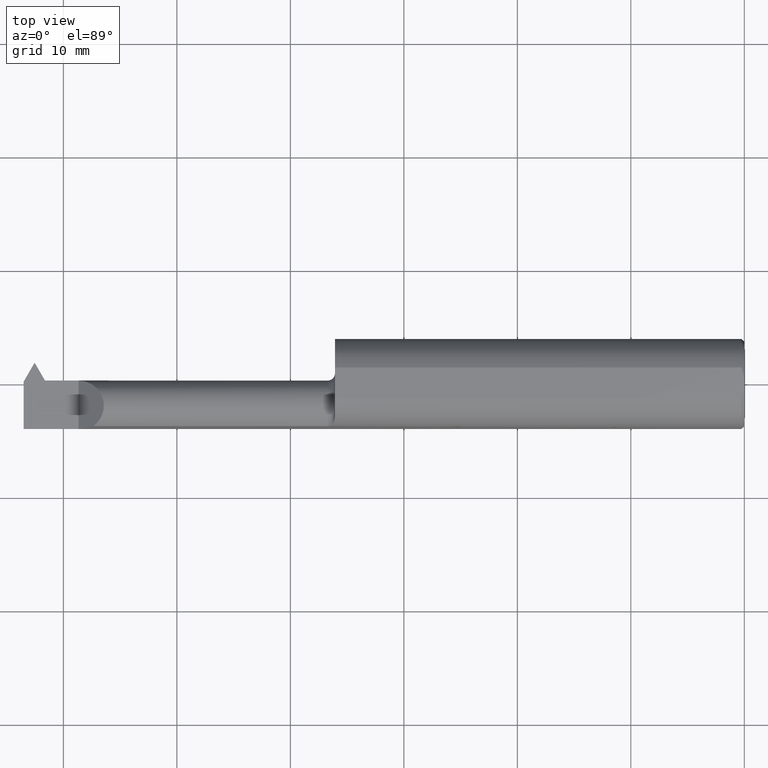
[diagram: clean part render]
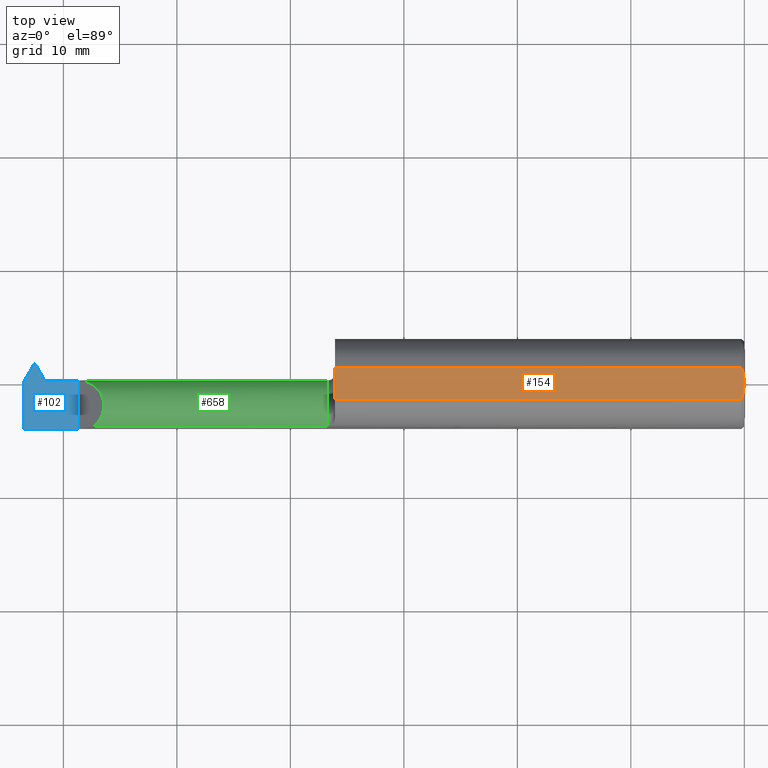
[diagram: same view with three faces highlighted in distinct colors, each labeled with its STEP entity id]
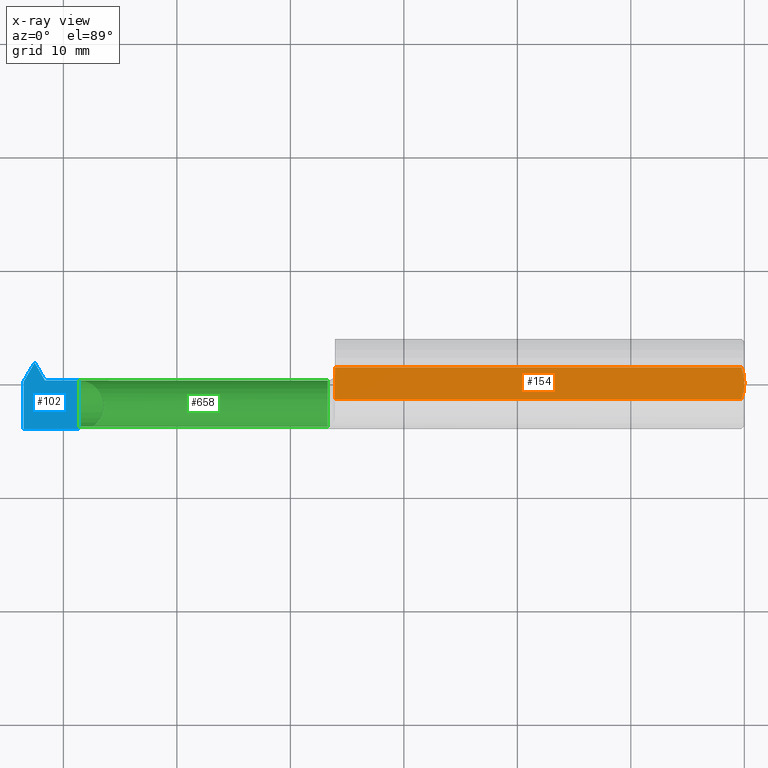
[diagram: x-ray of the same camera — body ghosted, the three highlighted faces saturated]
A machine part, top view with three faces highlighted in distinct colors.
The next image is the same camera in x-ray (body ghosted, the three faces saturated) — at least one of them is partly hidden behind the body in this view.
Their STEP definitions:

[orange] entity #154 — the highlighted planar face has unit normal (-0, 0, -1).
#4 = VECTOR ( 'NONE', #535, 39.37007874015748143 ) ;
#34 = VERTEX_POINT ( 'NONE', #108 ) ;
#37 = EDGE_CURVE ( 'NONE', #34, #790, #402, .T. ) ;
#67 = LINE ( 'NONE', #141, #210 ) ;
#108 = CARTESIAN_POINT ( 'NONE',  ( -3.241309669837331952E-33, 2.086455426436077518E-16, 0.1461000000000000354 ) ) ;
#113 = CARTESIAN_POINT ( 'NONE',  ( -0.004370115738486220897, 0.03710696786819750459, 0.1461000000000000076 ) ) ;
#126 = CARTESIAN_POINT ( 'NONE',  ( -2.500000000000000000, 0.1811000000000001220, 0.1461000000000000354 ) ) ;
#141 = CARTESIAN_POINT ( 'NONE',  ( -2.500000000000000000, 0.05497272050753895106, 0.1461000000000000076 ) ) ;
#143 = DIRECTION ( 'NONE',  ( -2.196953021474273815E-33, 1.414195192744475008E-16, -1.000000000000000000 ) ) ;
#154 = ADVANCED_FACE ( 'NONE', ( #191 ), #211, .F. ) ;
#183 = B_SPLINE_CURVE_WITH_KNOTS ( 'NONE', 3,
 ( #647, #223, #703, #516, #303, #766 ),
 .UNSPECIFIED., .F., .F.,
 ( 4, 2, 4 ),
 ( 0.001497827971916989567, 0.002206109860466244632, 0.002914391749015499914 ),
 .UNSPECIFIED. ) ;
#191 = FACE_OUTER_BOUND ( 'NONE', #484, .T. ) ;
#193 = EDGE_CURVE ( 'NONE', #688, #584, #538, .T. ) ;
#198 = CARTESIAN_POINT ( 'NONE',  ( 6.904318952737417485E-16, 0.009396510398413217627, 0.1461000000000000631 ) ) ;
#210 = VECTOR ( 'NONE', #417, 39.37007874015748143 ) ;
#211 = PLANE ( 'NONE',  #525 ) ;
#223 = CARTESIAN_POINT ( 'NONE',  ( -0.006903212852520313608, -0.04617911398309882537, 0.1461000000000000354 ) ) ;
#224 = VERTEX_POINT ( 'NONE', #824 ) ;
#257 = VECTOR ( 'NONE', #866, 39.37007874015748143 ) ;
#269 = LINE ( 'NONE', #470, #4 ) ;
#291 = EDGE_CURVE ( 'NONE', #790, #584, #67, .T. ) ;
#302 = ORIENTED_EDGE ( 'NONE', *, *, #291, .T. ) ;
#303 = CARTESIAN_POINT ( 'NONE',  ( 6.814946972475936967E-16, -0.009387766318748616556, 0.1461000000000000354 ) ) ;
#308 = ORIENTED_EDGE ( 'NONE', *, *, #37, .T. ) ;
#333 = DIRECTION ( 'NONE',  ( 0.000000000000000000, 1.000000000000000000, 1.414195192744475008E-16 ) ) ;
#340 = CARTESIAN_POINT ( 'NONE',  ( -3.241309669837331952E-33, 2.086455426436077518E-16, 0.1461000000000000354 ) ) ;
#347 = CARTESIAN_POINT ( 'NONE',  ( -1.420000000000000151, 0.05497272050753924943, 0.1461000000000000354 ) ) ;
#361 = ORIENTED_EDGE ( 'NONE', *, *, #193, .F. ) ;
#391 = CARTESIAN_POINT ( 'NONE',  ( -0.0009290501461033225323, 0.01879395969143610179, 0.1461000000000000631 ) ) ;
#402 = B_SPLINE_CURVE_WITH_KNOTS ( 'NONE', 3,
 ( #340, #198, #391, #113, #654, #582 ),
 .UNSPECIFIED., .F., .F.,
 ( 4, 2, 4 ),
 ( 0.002914391749015499914, 0.003623333355014890598, 0.004332274961014280848 ),
 .UNSPECIFIED. ) ;
#417 = DIRECTION ( 'NONE',  ( -1.000000000000000000, -1.224646799147352961E-16, 0.000000000000000000 ) ) ;
#437 = EDGE_CURVE ( 'NONE', #224, #34, #183, .T. ) ;
#470 = CARTESIAN_POINT ( 'NONE',  ( -2.500000000000000000, -0.05497272050753911760, 0.1461000000000000076 ) ) ;
#484 = EDGE_LOOP ( 'NONE', ( #361, #560, #576, #308, #302 ) ) ;
#516 = CARTESIAN_POINT ( 'NONE',  ( -0.0009113193687663462966, -0.01867274705588926886, 0.1460999999999999799 ) ) ;
#525 = AXIS2_PLACEMENT_3D ( 'NONE', #126, #143, #333 ) ;
#533 = CARTESIAN_POINT ( 'NONE',  ( -1.420000000000000151, 0.1811000000000001220, 0.1461000000000000354 ) ) ;
#535 = DIRECTION ( 'NONE',  ( 1.000000000000000000, 1.224646799147352961E-16, -0.000000000000000000 ) ) ;
#538 = LINE ( 'NONE', #533, #257 ) ;
#560 = ORIENTED_EDGE ( 'NONE', *, *, #609, .T. ) ;
#576 = ORIENTED_EDGE ( 'NONE', *, *, #437, .T. ) ;
#582 = CARTESIAN_POINT ( 'NONE',  ( -0.009999999999999073866, 0.05497272050753925637, 0.1461000000000000076 ) ) ;
#584 = VERTEX_POINT ( 'NONE', #347 ) ;
#609 = EDGE_CURVE ( 'NONE', #688, #224, #269, .T. ) ;
#647 = CARTESIAN_POINT ( 'NONE',  ( -0.009999999999999073866, -0.05497272050753881228, 0.1461000000000000076 ) ) ;
#654 = CARTESIAN_POINT ( 'NONE',  ( -0.006876379561361965764, 0.04610291843171875070, 0.1461000000000000354 ) ) ;
#670 = CARTESIAN_POINT ( 'NONE',  ( -0.009999999999999073866, 0.05497272050753925637, 0.1461000000000000076 ) ) ;
#688 = VERTEX_POINT ( 'NONE', #732 ) ;
#703 = CARTESIAN_POINT ( 'NONE',  ( -0.004356241145161064872, -0.03705973501792333979, 0.1461000000000000354 ) ) ;
#732 = CARTESIAN_POINT ( 'NONE',  ( -1.420000000000000151, -0.05497272050753899270, 0.1461000000000000076 ) ) ;
#766 = CARTESIAN_POINT ( 'NONE',  ( -3.241309669837331952E-33, 2.086455426436077518E-16, 0.1461000000000000354 ) ) ;
#790 = VERTEX_POINT ( 'NONE', #670 ) ;
#824 = CARTESIAN_POINT ( 'NONE',  ( -0.009999999999999073866, -0.05497272050753881228, 0.1461000000000000076 ) ) ;
#866 = DIRECTION ( 'NONE',  ( -1.301231752219315598E-17, 1.000000000000000000, 1.414195192744475008E-16 ) ) ;

[blue] entity #102 — the highlighted planar face has unit normal (-0, 0, -1).
#5 = CARTESIAN_POINT ( 'NONE',  ( -2.500000000000000000, 0.01189999999999992973, 8.875653457662611807E-19 ) ) ;
#7 = ORIENTED_EDGE ( 'NONE', *, *, #476, .F. ) ;
#10 = VERTEX_POINT ( 'NONE', #260 ) ;
#13 = VERTEX_POINT ( 'NONE', #119 ) ;
#17 = ORIENTED_EDGE ( 'NONE', *, *, #275, .T. ) ;
#20 = DIRECTION ( 'NONE',  ( 0.5000000000000074385, -0.8660254037844342667, 0.000000000000000000 ) ) ;
#30 = ORIENTED_EDGE ( 'NONE', *, *, #86, .F. ) ;
#32 = VERTEX_POINT ( 'NONE', #471 ) ;
#41 = CARTESIAN_POINT ( 'NONE',  ( -2.500000000000000000, -0.1561000000000000720, 8.875653457662611807E-19 ) ) ;
#45 = VECTOR ( 'NONE', #284, 39.37007874015748143 ) ;
#60 = CARTESIAN_POINT ( 'NONE',  ( -2.500000000000000000, 0.07189999999999992231, 8.875653457662611807E-19 ) ) ;
#66 = AXIS2_PLACEMENT_3D ( 'NONE', #610, #856, #278 ) ;
#68 = CARTESIAN_POINT ( 'NONE',  ( -2.460750000000000437, 0.07189999999999995006, 0.000000000000000000 ) ) ;
#73 = ORIENTED_EDGE ( 'NONE', *, *, #624, .F. ) ;
#86 = EDGE_CURVE ( 'NONE', #32, #622, #675, .T. ) ;
#102 = ADVANCED_FACE ( 'NONE', ( #542 ), #544, .F. ) ;
#106 = CARTESIAN_POINT ( 'NONE',  ( -2.310000000000000053, -0.2500000000000000000, 0.000000000000000000 ) ) ;
#119 = CARTESIAN_POINT ( 'NONE',  ( -2.310000000000000053, 0.01189999999999987769, 0.000000000000000000 ) ) ;
#124 = EDGE_LOOP ( 'NONE', ( #30, #73, #17, #418, #144, #404, #7, #706 ) ) ;
#144 = ORIENTED_EDGE ( 'NONE', *, *, #422, .T. ) ;
#165 = DIRECTION ( 'NONE',  ( 1.000000000000000000, 2.091571120149166951E-14, 0.000000000000000000 ) ) ;
#239 = LINE ( 'NONE', #106, #850 ) ;
#256 = VERTEX_POINT ( 'NONE', #277 ) ;
#260 = CARTESIAN_POINT ( 'NONE',  ( -2.310000000000000053, -0.1561000000000000998, 0.000000000000000000 ) ) ;
#273 = DIRECTION ( 'NONE',  ( 1.000000000000000000, 1.301231752219315598E-17, 0.000000000000000000 ) ) ;
#275 = EDGE_CURVE ( 'NONE', #770, #694, #809, .T. ) ;
#277 = CARTESIAN_POINT ( 'NONE',  ( -2.426108983848622280, 0.01189999999999981004, 0.000000000000000000 ) ) ;
#278 = DIRECTION ( 'NONE',  ( -1.000000000000000000, 0.000000000000000000, 4.671396556664535003E-18 ) ) ;
#284 = DIRECTION ( 'NONE',  ( 1.000000000000000000, 1.301231752219315598E-17, 0.000000000000000000 ) ) ;
#357 = VECTOR ( 'NONE', #20, 39.37007874015748854 ) ;
#363 = EDGE_CURVE ( 'NONE', #565, #13, #614, .T. ) ;
#404 = ORIENTED_EDGE ( 'NONE', *, *, #363, .F. ) ;
#408 = CARTESIAN_POINT ( 'NONE',  ( -2.421108983848621943, 0.01189999999999981004, 0.000000000000000000 ) ) ;
#418 = ORIENTED_EDGE ( 'NONE', *, *, #807, .T. ) ;
#422 = EDGE_CURVE ( 'NONE', #10, #13, #239, .T. ) ;
#443 = VECTOR ( 'NONE', #743, 39.37007874015748143 ) ;
#461 = LINE ( 'NONE', #657, #357 ) ;
#471 = CARTESIAN_POINT ( 'NONE',  ( -2.463250000000000384, 0.07189999999999988067, 0.000000000000000000 ) ) ;
#476 = EDGE_CURVE ( 'NONE', #256, #565, #571, .T. ) ;
#539 = DIRECTION ( 'NONE',  ( 1.000000000000000000, 1.224646799147352961E-16, -0.000000000000000000 ) ) ;
#542 = FACE_OUTER_BOUND ( 'NONE', #124, .T. ) ;
#544 = PLANE ( 'NONE',  #66 ) ;
#554 = DIRECTION ( 'NONE',  ( 1.224646799147352961E-16, -1.000000000000000000, -5.720810840667189241E-34 ) ) ;
#565 = VERTEX_POINT ( 'NONE', #408 ) ;
#571 = LINE ( 'NONE', #627, #812 ) ;
#588 = VECTOR ( 'NONE', #554, 39.37007874015748143 ) ;
#610 = CARTESIAN_POINT ( 'NONE',  ( -2.500000000000000000, -0.2500000000000000000, 8.875653457662611807E-19 ) ) ;
#614 = LINE ( 'NONE', #5, #45 ) ;
#619 = VECTOR ( 'NONE', #539, 39.37007874015748143 ) ;
#622 = VERTEX_POINT ( 'NONE', #68 ) ;
#624 = EDGE_CURVE ( 'NONE', #770, #32, #801, .T. ) ;
#627 = CARTESIAN_POINT ( 'NONE',  ( -2.488969632988080628E-16, 0.01190000000005054549, 0.000000000000000000 ) ) ;
#640 = VECTOR ( 'NONE', #273, 39.37007874015748143 ) ;
#641 = CARTESIAN_POINT ( 'NONE',  ( -2.500000000000000000, 0.008247132821841942490, 0.000000000000000000 ) ) ;
#657 = CARTESIAN_POINT ( 'NONE',  ( -1.814428886733931101, -1.047561006181289001, 0.000000000000000000 ) ) ;
#675 = LINE ( 'NONE', #60, #640 ) ;
#683 = CARTESIAN_POINT ( 'NONE',  ( -2.500000000000000000, -6.123233995736767268E-17, 8.875653457662611807E-19 ) ) ;
#685 = EDGE_CURVE ( 'NONE', #622, #256, #461, .T. ) ;
#694 = VERTEX_POINT ( 'NONE', #41 ) ;
#706 = ORIENTED_EDGE ( 'NONE', *, *, #685, .F. ) ;
#719 = DIRECTION ( 'NONE',  ( -0.000000000000000000, 1.000000000000000000, -0.000000000000000000 ) ) ;
#738 = LINE ( 'NONE', #750, #619 ) ;
#743 = DIRECTION ( 'NONE',  ( 0.4999999999999878986, 0.8660254037844455910, 0.000000000000000000 ) ) ;
#750 = CARTESIAN_POINT ( 'NONE',  ( -2.500000000000000000, -0.1561000000000000720, 8.875653457662609881E-19 ) ) ;
#770 = VERTEX_POINT ( 'NONE', #641 ) ;
#801 = LINE ( 'NONE', #870, #443 ) ;
#807 = EDGE_CURVE ( 'NONE', #694, #10, #738, .T. ) ;
#809 = LINE ( 'NONE', #683, #588 ) ;
#812 = VECTOR ( 'NONE', #165, 39.37007874015748143 ) ;
#850 = VECTOR ( 'NONE', #719, 39.37007874015748143 ) ;
#856 = DIRECTION ( 'NONE',  ( -4.671396556664535003E-18, 0.000000000000000000, -1.000000000000000000 ) ) ;
#870 = CARTESIAN_POINT ( 'NONE',  ( -1.878571113266080284, 1.084593537935991225, 0.000000000000000000 ) ) ;

[green] entity #658 — the highlighted cylindrical surface (edge-blend (fillet) strip) has radius 2.2352 mm, axis along (-1, -0, -0).
#3 = DIRECTION ( 'NONE',  ( -1.000000000000000000, -1.301231752219315598E-17, -0.000000000000000000 ) ) ;
#5 = CARTESIAN_POINT ( 'NONE',  ( -2.500000000000000000, 0.01189999999999992973, 8.875653457662611807E-19 ) ) ;
#8 = CIRCLE ( 'NONE', #468, 0.08800000000000000877 ) ;
#13 = VERTEX_POINT ( 'NONE', #119 ) ;
#24 = ORIENTED_EDGE ( 'NONE', *, *, #536, .T. ) ;
#45 = VECTOR ( 'NONE', #284, 39.37007874015748143 ) ;
#52 = CARTESIAN_POINT ( 'NONE',  ( -1.445000000000000062, -0.07610000000000005649, 0.000000000000000000 ) ) ;
#53 = CARTESIAN_POINT ( 'NONE',  ( -2.419116291096571558, 0.01189999999999994187, -0.009794397791003101386 ) ) ;
#61 = DIRECTION ( 'NONE',  ( -1.000000000000000000, -1.301231752219315598E-17, -0.000000000000000000 ) ) ;
#69 = DIRECTION ( 'NONE',  ( 0.000000000000000000, -1.000000000000000000, 0.000000000000000000 ) ) ;
#75 = LINE ( 'NONE', #499, #118 ) ;
#103 = CARTESIAN_POINT ( 'NONE',  ( -2.258241905890881807, -0.1472695137976346713, 0.05175809410911782343 ) ) ;
#118 = VECTOR ( 'NONE', #617, 39.37007874015748143 ) ;
#119 = CARTESIAN_POINT ( 'NONE',  ( -2.310000000000000053, 0.01189999999999987769, 0.000000000000000000 ) ) ;
#122 = DIRECTION ( 'NONE',  ( -1.000000000000000000, -1.553500558300393113E-17, -0.000000000000000000 ) ) ;
#127 = ORIENTED_EDGE ( 'NONE', *, *, #264, .F. ) ;
#130 = CYLINDRICAL_SURFACE ( 'NONE', #513, 0.08800000000000002265 ) ;
#134 = CARTESIAN_POINT ( 'NONE',  ( -2.500000000000000000, -0.04738773832811999515, -0.08318416934540782959 ) ) ;
#146 = CARTESIAN_POINT ( 'NONE',  ( -2.206585760359398130, 0.01189999999999993840, 0.1034142396406013825 ) ) ;
#155 = VERTEX_POINT ( 'NONE', #467 ) ;
#159 = ORIENTED_EDGE ( 'NONE', *, *, #363, .T. ) ;
#181 = CIRCLE ( 'NONE', #839, 0.08799999999999992550 ) ;
#185 = EDGE_CURVE ( 'NONE', #611, #311, #760, .T. ) ;
#196 = CARTESIAN_POINT ( 'NONE',  ( -2.417151050136866708, 0.01027984334874565420, -0.01945386571184650609 ) ) ;
#202 = LINE ( 'NONE', #134, #282 ) ;
#215 = CARTESIAN_POINT ( 'NONE',  ( -2.421108983848621943, 0.01189999999999981004, 0.000000000000000000 ) ) ;
#226 = CARTESIAN_POINT ( 'NONE',  ( -2.174606210947997997, -0.08644537803012208865, 0.1353937890520004461 ) ) ;
#232 = CARTESIAN_POINT ( 'NONE',  ( -2.413632881043807465, 0.007084169345407169416, -0.02871226167188161912 ) ) ;
#234 = LINE ( 'NONE', #761, #330 ) ;
#236 = EDGE_CURVE ( 'NONE', #13, #435, #383, .T. ) ;
#264 = EDGE_CURVE ( 'NONE', #611, #435, #75, .T. ) ;
#267 = CARTESIAN_POINT ( 'NONE',  ( -2.421108983848621943, -0.07610000000000008424, 0.000000000000000000 ) ) ;
#272 = CARTESIAN_POINT ( 'NONE',  ( -2.415267408189822440, 0.007084169345407244009, -0.02871226167188149769 ) ) ;
#282 = VECTOR ( 'NONE', #478, 39.37007874015748143 ) ;
#284 = DIRECTION ( 'NONE',  ( 1.000000000000000000, 1.301231752219315598E-17, 0.000000000000000000 ) ) ;
#311 = VERTEX_POINT ( 'NONE', #722 ) ;
#318 = ORIENTED_EDGE ( 'NONE', *, *, #185, .T. ) ;
#319 = CARTESIAN_POINT ( 'NONE',  ( -2.500000000000000000, 0.007084169345407237070, -0.02871226167188158443 ) ) ;
#330 = VECTOR ( 'NONE', #781, 39.37007874015748143 ) ;
#336 = DIRECTION ( 'NONE',  ( 0.000000000000000000, -1.000000000000000000, 0.000000000000000000 ) ) ;
#338 = CARTESIAN_POINT ( 'NONE',  ( -2.415267408189822440, 0.007084169345407244009, -0.02871226167188149769 ) ) ;
#344 = CIRCLE ( 'NONE', #825, 0.08799999999999988387 ) ;
#363 = EDGE_CURVE ( 'NONE', #565, #13, #614, .T. ) ;
#369 = CARTESIAN_POINT ( 'NONE',  ( -2.500000000000000000, -0.07610000000000007037, -0.08799999999999992550 ) ) ;
#383 =( BOUNDED_CURVE ( )  B_SPLINE_CURVE ( 3, ( #752, #146, #226, #492 ),
 .UNSPECIFIED., .F., .T. ) 
 B_SPLINE_CURVE_WITH_KNOTS ( ( 4, 4 ),
 ( 1.570796326794896558, 4.083606959790376578 ),
 .UNSPECIFIED. ) 
 CURVE ( )  GEOMETRIC_REPRESENTATION_ITEM ( )  RATIONAL_B_SPLINE_CURVE ( ( 1.000000000000000000, 0.5394915924057046563, 0.5394915924057046563, 1.000000000000000000 ) ) 
 REPRESENTATION_ITEM ( '' )  );
#388 = ORIENTED_EDGE ( 'NONE', *, *, #827, .F. ) ;
#408 = CARTESIAN_POINT ( 'NONE',  ( -2.421108983848621943, 0.01189999999999981004, 0.000000000000000000 ) ) ;
#423 = EDGE_LOOP ( 'NONE', ( #704, #515, #24, #867, #512, #159, #600, #127, #318, #780, #821, #388 ) ) ;
#435 = VERTEX_POINT ( 'NONE', #103 ) ;
#451 = EDGE_CURVE ( 'NONE', #625, #311, #234, .T. ) ;
#455 = DIRECTION ( 'NONE',  ( 1.000000000000000000, -0.000000000000000000, 0.000000000000000000 ) ) ;
#462 = EDGE_CURVE ( 'NONE', #777, #828, #826, .T. ) ;
#467 = CARTESIAN_POINT ( 'NONE',  ( -2.413632881043807465, -0.04738773832811999515, -0.08318416934540782959 ) ) ;
#468 = AXIS2_PLACEMENT_3D ( 'NONE', #725, #455, #518 ) ;
#474 = CARTESIAN_POINT ( 'NONE',  ( -2.421108983848621943, -0.04738773832811973147, -0.08318416934540759367 ) ) ;
#478 = DIRECTION ( 'NONE',  ( 1.000000000000000000, 1.301231752219315598E-17, 0.000000000000000000 ) ) ;
#492 = CARTESIAN_POINT ( 'NONE',  ( -2.258241905890881807, -0.1472695137976346713, 0.05175809410911782343 ) ) ;
#494 =( BOUNDED_CURVE ( )  B_SPLINE_CURVE ( 3, ( #215, #53, #196, #272 ),
 .UNSPECIFIED., .F., .T. ) 
 B_SPLINE_CURVE_WITH_KNOTS ( ( 4, 4 ),
 ( 1.570796326794896780, 1.903157296839100399 ),
 .UNSPECIFIED. ) 
 CURVE ( )  GEOMETRIC_REPRESENTATION_ITEM ( )  RATIONAL_B_SPLINE_CURVE ( ( 1.000000000000000000, 0.9908158471105027454, 0.9908158471105027454, 1.000000000000000000 ) ) 
 REPRESENTATION_ITEM ( '' )  );
#499 = CARTESIAN_POINT ( 'NONE',  ( -1.933054491924310891, -0.1472695137976346158, 0.05175809410911793446 ) ) ;
#512 = ORIENTED_EDGE ( 'NONE', *, *, #816, .F. ) ;
#513 = AXIS2_PLACEMENT_3D ( 'NONE', #676, #61, #806 ) ;
#515 = ORIENTED_EDGE ( 'NONE', *, *, #558, .T. ) ;
#518 = DIRECTION ( 'NONE',  ( 0.000000000000000000, -8.731048275205386309E-16, 1.000000000000000000 ) ) ;
#536 = EDGE_CURVE ( 'NONE', #155, #777, #8, .T. ) ;
#555 = VERTEX_POINT ( 'NONE', #671 ) ;
#558 = EDGE_CURVE ( 'NONE', #628, #155, #202, .T. ) ;
#565 = VERTEX_POINT ( 'NONE', #408 ) ;
#585 = DIRECTION ( 'NONE',  ( 1.000000000000000000, 1.553500558300393113E-17, -0.000000000000000000 ) ) ;
#600 = ORIENTED_EDGE ( 'NONE', *, *, #236, .T. ) ;
#603 = CARTESIAN_POINT ( 'NONE',  ( -1.445000000000000062, -0.1472695137976347268, 0.05175809410911798997 ) ) ;
#605 = DIRECTION ( 'NONE',  ( -1.000000000000000000, -1.301231752219315598E-17, -0.000000000000000000 ) ) ;
#611 = VERTEX_POINT ( 'NONE', #603 ) ;
#614 = LINE ( 'NONE', #5, #45 ) ;
#617 = DIRECTION ( 'NONE',  ( -1.000000000000000000, -1.301231752219315598E-17, -0.000000000000000000 ) ) ;
#625 = VERTEX_POINT ( 'NONE', #873 ) ;
#628 = VERTEX_POINT ( 'NONE', #474 ) ;
#637 = DIRECTION ( 'NONE',  ( -1.000000000000000000, -1.301231752219315598E-17, -0.000000000000000000 ) ) ;
#658 = ADVANCED_FACE ( 'NONE', ( #844 ), #130, .T. ) ;
#671 = CARTESIAN_POINT ( 'NONE',  ( -2.421108983848621943, -0.07610000000000007037, -0.08799999999999992550 ) ) ;
#676 = CARTESIAN_POINT ( 'NONE',  ( -2.500000000000000000, -0.07610000000000008424, 0.000000000000000000 ) ) ;
#686 = AXIS2_PLACEMENT_3D ( 'NONE', #52, #605, #336 ) ;
#700 = EDGE_CURVE ( 'NONE', #625, #759, #181, .T. ) ;
#704 = ORIENTED_EDGE ( 'NONE', *, *, #845, .F. ) ;
#722 = CARTESIAN_POINT ( 'NONE',  ( -1.445000000000000062, -0.1472695137976346991, -0.05175809410911803160 ) ) ;
#725 = CARTESIAN_POINT ( 'NONE',  ( -2.413632881043807465, -0.07610000000000008424, 0.000000000000000000 ) ) ;
#742 = LINE ( 'NONE', #754, #814 ) ;
#752 = CARTESIAN_POINT ( 'NONE',  ( -2.310000000000000053, 0.01189999999999987769, 0.000000000000000000 ) ) ;
#754 = CARTESIAN_POINT ( 'NONE',  ( -2.399999999999999911, -0.07610000000000007037, -0.08799999999999992550 ) ) ;
#759 = VERTEX_POINT ( 'NONE', #369 ) ;
#760 = CIRCLE ( 'NONE', #686, 0.08800000000000014755 ) ;
#761 = CARTESIAN_POINT ( 'NONE',  ( -1.933054491924310891, -0.1472695137976346158, -0.05175809410911793446 ) ) ;
#764 = DIRECTION ( 'NONE',  ( 0.000000000000000000, -1.000000000000000000, 0.000000000000000000 ) ) ;
#777 = VERTEX_POINT ( 'NONE', #232 ) ;
#780 = ORIENTED_EDGE ( 'NONE', *, *, #451, .F. ) ;
#781 = DIRECTION ( 'NONE',  ( 1.000000000000000000, 1.301231752219315598E-17, 0.000000000000000000 ) ) ;
#806 = DIRECTION ( 'NONE',  ( 0.000000000000000000, -1.000000000000000000, 0.000000000000000000 ) ) ;
#814 = VECTOR ( 'NONE', #122, 39.37007874015748143 ) ;
#816 = EDGE_CURVE ( 'NONE', #565, #828, #494, .T. ) ;
#821 = ORIENTED_EDGE ( 'NONE', *, *, #700, .T. ) ;
#825 = AXIS2_PLACEMENT_3D ( 'NONE', #267, #3, #69 ) ;
#826 = LINE ( 'NONE', #319, #837 ) ;
#827 = EDGE_CURVE ( 'NONE', #555, #759, #742, .T. ) ;
#828 = VERTEX_POINT ( 'NONE', #338 ) ;
#837 = VECTOR ( 'NONE', #637, 39.37007874015748143 ) ;
#839 = AXIS2_PLACEMENT_3D ( 'NONE', #847, #585, #764 ) ;
#844 = FACE_OUTER_BOUND ( 'NONE', #423, .T. ) ;
#845 = EDGE_CURVE ( 'NONE', #628, #555, #344, .T. ) ;
#847 = CARTESIAN_POINT ( 'NONE',  ( -2.500000000000000000, -0.07610000000000008424, 0.000000000000000000 ) ) ;
#867 = ORIENTED_EDGE ( 'NONE', *, *, #462, .T. ) ;
#873 = CARTESIAN_POINT ( 'NONE',  ( -2.500000000000000000, -0.1472695137976348934, -0.05175809410911740016 ) ) ;